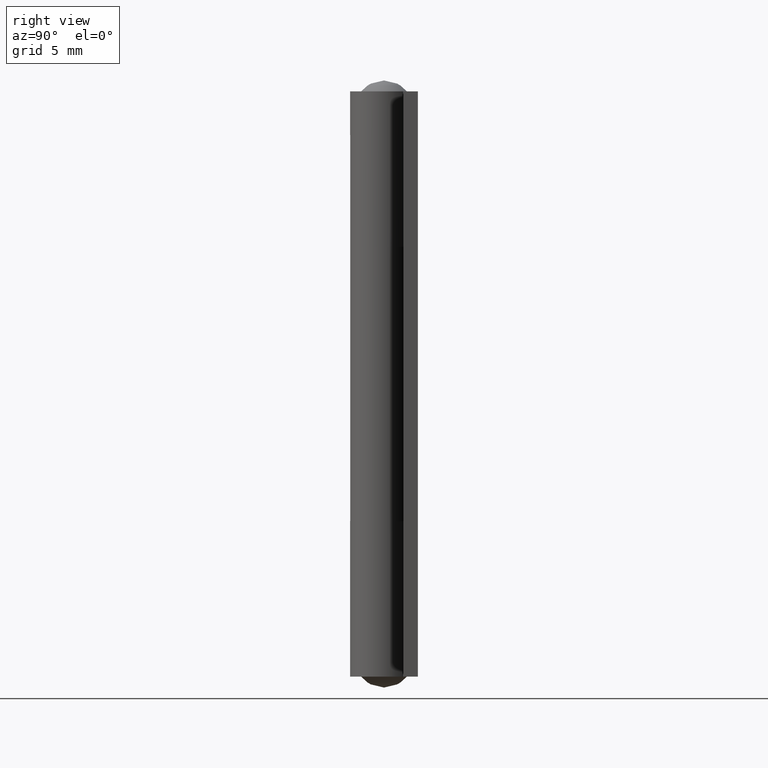
[diagram: clean part render]
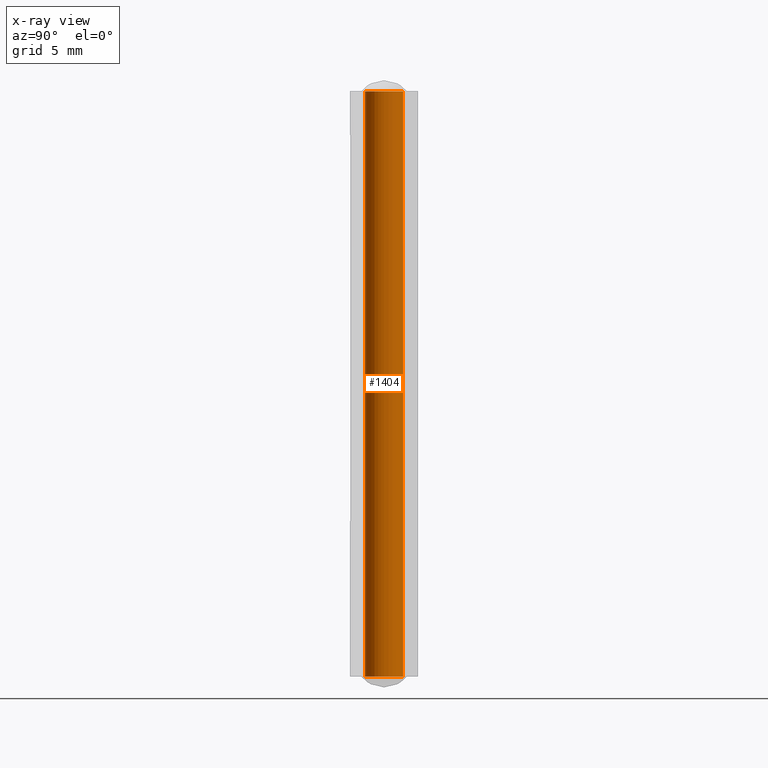
[diagram: x-ray — body ghosted, one internal face saturated and labeled with its STEP entity id]
A machine part, right view, then the same camera in x-ray: the body is ghosted and one INTERNAL B-rep face — a face not visible from any outside direction — is saturated and labeled: STEP entity #1404.
In plain terms, the highlighted face is a freeform B-spline surface patch.
Its self-contained STEP definition (entity closure, byte-faithful):
#1218=CARTESIAN_POINT('',(0.064100661298383,-1.048036547667165,-1.665335E-015));
#1219=VERTEX_POINT('',#1218);
#1233=CARTESIAN_POINT('',(-1.049995000000000,0.0,0.0));
#1234=VERTEX_POINT('',#1233);
#1235=CARTESIAN_POINT('',(0.064100661298383,-1.048036547667165,0.0));
#1236=CARTESIAN_POINT('',(0.032080248714484,-1.049995000000001,0.0));
#1237=CARTESIAN_POINT('',(0.0,-1.049995000000000,0.0));
#1238=CARTESIAN_POINT('',(-1.049995000000000,-1.049995000000000,0.0));
#1239=CARTESIAN_POINT('',(-1.049995000000000,0.0,0.0));
#1247=(BOUNDED_CURVE()B_SPLINE_CURVE(2,(#1235,#1236,#1237,#1238,#1239),.UNSPECIFIED.,.F.,.U.)B_SPLINE_CURVE_WITH_KNOTS((3,2,3),(0.739332962237115,0.750000000000000,1.0),.UNSPECIFIED.)CURVE()GEOMETRIC_REPRESENTATION_ITEM()RATIONAL_B_SPLINE_CURVE((0.976072041662799,0.987502787897695,1.0,0.707106781186548,1.0))REPRESENTATION_ITEM(''));
#1248=EDGE_CURVE('',#1219,#1234,#1247,.T.);
#1250=CARTESIAN_POINT('',(-0.064100661298383,1.048036547667165,-1.665335E-015));
#1251=VERTEX_POINT('',#1250);
#1252=CARTESIAN_POINT('',(-1.049995000000000,0.0,0.0));
#1253=CARTESIAN_POINT('',(-1.049995000000000,0.987736666692808,0.0));
#1254=CARTESIAN_POINT('',(-0.064100661298383,1.048036547667165,0.0));
#1262=(BOUNDED_CURVE()B_SPLINE_CURVE(2,(#1252,#1253,#1254),.UNSPECIFIED.,.F.,.U.)B_SPLINE_CURVE_WITH_KNOTS((3,3),(0.0,0.239332962237115),.UNSPECIFIED.)CURVE()GEOMETRIC_REPRESENTATION_ITEM()RATIONAL_B_SPLINE_CURVE((1.0,0.719603993288852,0.976072041662799))REPRESENTATION_ITEM(''));
#1263=EDGE_CURVE('',#1234,#1251,#1262,.T.);
#1302=CARTESIAN_POINT('',(-0.064100661298383,1.048036547667165,32.0));
#1303=VERTEX_POINT('',#1302);
#1304=CARTESIAN_POINT('',(-0.064100661298383,1.048036547667165,32.0));
#1305=CARTESIAN_POINT('',(-0.064100661298383,1.048036547667165,-1.665335E-015));
#1306=QUASI_UNIFORM_CURVE('',1,(#1304,#1305),.UNSPECIFIED.,.F.,.U.);
#1307=EDGE_CURVE('',#1303,#1251,#1306,.T.);
#1326=CARTESIAN_POINT('',(0.064100661298383,-1.048036547667165,32.0));
#1327=VERTEX_POINT('',#1326);
#1341=CARTESIAN_POINT('',(0.064100661298383,-1.048036547667165,32.0));
#1342=CARTESIAN_POINT('',(0.064100661298383,-1.048036547667165,-1.665335E-015));
#1343=QUASI_UNIFORM_CURVE('',1,(#1341,#1342),.UNSPECIFIED.,.F.,.U.);
#1344=EDGE_CURVE('',#1327,#1219,#1343,.T.);
#1350=CARTESIAN_POINT('',(0.064100661268902,-1.048036547668968,32.799999999999997));
#1351=CARTESIAN_POINT('',(-0.983935886400066,-1.112137208937870,32.799999999999997));
#1352=CARTESIAN_POINT('',(-1.048036547668968,-0.064100661268902,32.799999999999997));
#1353=CARTESIAN_POINT('',(-1.112137208937870,0.983935886400066,32.799999999999997));
#1354=CARTESIAN_POINT('',(-0.064100661268902,1.048036547668968,32.799999999999997));
#1355=CARTESIAN_POINT('',(0.064100661268902,-1.048036547668968,-0.820000000000000));
#1356=CARTESIAN_POINT('',(-0.983935886400066,-1.112137208937870,-0.820000000000000));
#1357=CARTESIAN_POINT('',(-1.048036547668968,-0.064100661268902,-0.820000000000000));
#1358=CARTESIAN_POINT('',(-1.112137208937870,0.983935886400066,-0.820000000000000));
#1359=CARTESIAN_POINT('',(-0.064100661268902,1.048036547668968,-0.820000000000000));
#1367=(BOUNDED_SURFACE()B_SPLINE_SURFACE(2,1,((#1350,#1355),(#1351,#1356),(#1352,#1357),(#1353,#1358),(#1354,#1359)),.UNSPECIFIED.,.F.,.F.,.U.)B_SPLINE_SURFACE_WITH_KNOTS((3,2,3),(2,2),(0.0,1.570796326794897,3.141592653589793),(0.0,33.619999999999997),.UNSPECIFIED.)GEOMETRIC_REPRESENTATION_ITEM()RATIONAL_B_SPLINE_SURFACE(((1.0,1.0),(0.707106781186548,0.707106781186548),(1.0,1.0),(0.707106781186548,0.707106781186548),(1.0,1.0)))REPRESENTATION_ITEM('')SURFACE());
#1368=ORIENTED_EDGE('',*,*,#1263,.F.);
#1369=ORIENTED_EDGE('',*,*,#1248,.F.);
#1370=ORIENTED_EDGE('',*,*,#1344,.F.);
#1371=CARTESIAN_POINT('',(-1.049995000000000,0.0,32.0));
#1372=VERTEX_POINT('',#1371);
#1373=CARTESIAN_POINT('',(0.064100661298383,-1.048036547667165,31.999999999999996));
#1374=CARTESIAN_POINT('',(0.032080248714484,-1.049995000000001,31.999999999999996));
#1375=CARTESIAN_POINT('',(0.0,-1.049995000000000,32.0));
#1376=CARTESIAN_POINT('',(-1.049995000000000,-1.049995000000000,31.999999999999996));
#1377=CARTESIAN_POINT('',(-1.049995000000000,0.0,32.0));
#1385=(BOUNDED_CURVE()B_SPLINE_CURVE(2,(#1373,#1374,#1375,#1376,#1377),.UNSPECIFIED.,.F.,.U.)B_SPLINE_CURVE_WITH_KNOTS((3,2,3),(0.739332962237115,0.750000000000000,1.0),.UNSPECIFIED.)CURVE()GEOMETRIC_REPRESENTATION_ITEM()RATIONAL_B_SPLINE_CURVE((0.976072041662799,0.987502787897695,1.0,0.707106781186548,1.0))REPRESENTATION_ITEM(''));
#1386=EDGE_CURVE('',#1327,#1372,#1385,.T.);
#1387=ORIENTED_EDGE('',*,*,#1386,.T.);
#1388=CARTESIAN_POINT('',(-1.049995000000000,0.0,32.0));
#1389=CARTESIAN_POINT('',(-1.049995000000000,0.987736666692809,32.000000000000007));
#1390=CARTESIAN_POINT('',(-0.064100661298383,1.048036547667165,32.000000000000007));
#1398=(BOUNDED_CURVE()B_SPLINE_CURVE(2,(#1388,#1389,#1390),.UNSPECIFIED.,.F.,.U.)B_SPLINE_CURVE_WITH_KNOTS((3,3),(0.0,0.239332962237115),.UNSPECIFIED.)CURVE()GEOMETRIC_REPRESENTATION_ITEM()RATIONAL_B_SPLINE_CURVE((1.0,0.719603993288852,0.976072041662800))REPRESENTATION_ITEM(''));
#1399=EDGE_CURVE('',#1372,#1303,#1398,.T.);
#1400=ORIENTED_EDGE('',*,*,#1399,.T.);
#1401=ORIENTED_EDGE('',*,*,#1307,.T.);
#1402=EDGE_LOOP('',(#1368,#1369,#1370,#1387,#1400,#1401));
#1403=FACE_OUTER_BOUND('',#1402,.T.);
#1404=ADVANCED_FACE('',(#1403),#1367,.T.);